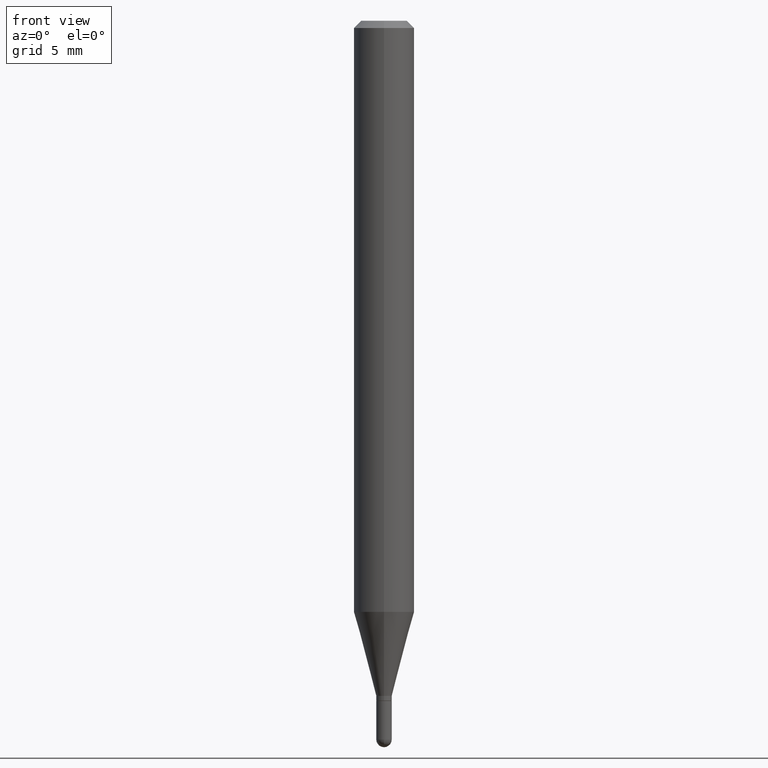
[diagram: clean part render]
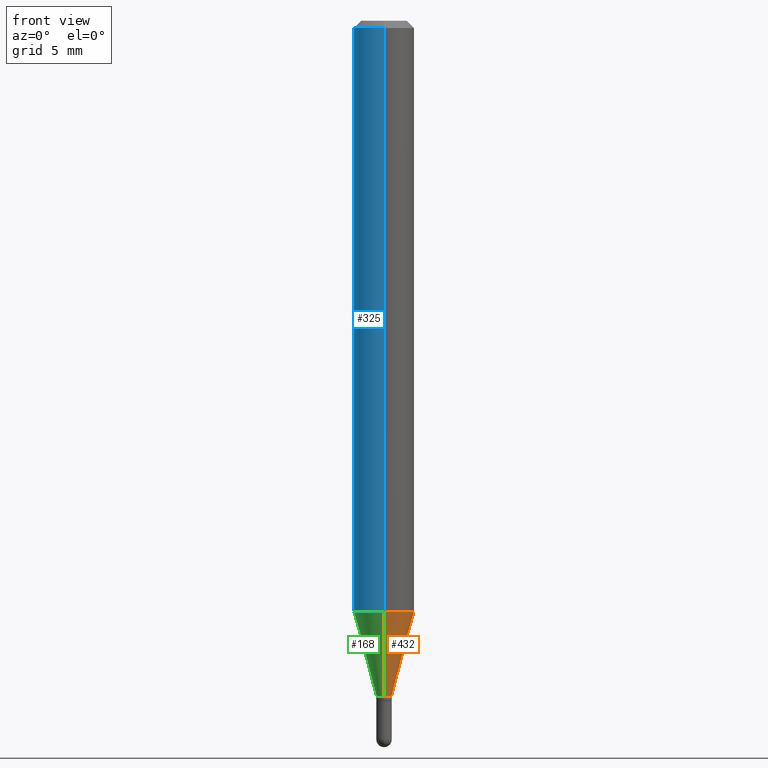
[diagram: same view with three faces highlighted in distinct colors, each labeled with its STEP entity id]
A machine part, front view with three faces highlighted in distinct colors.
Their STEP definitions:

[orange] entity #432 — the highlighted conical surface has half-angle 15 deg.
#3 = CARTESIAN_POINT ( 'NONE',  ( 2.788880237858710265E-16, 0.01599999999999505637, -1.393999999999999906 ) ) ;
#7 = CARTESIAN_POINT ( 'NONE',  ( 3.408965558848193450E-29, -4.867150701755997361E-15, -1.393999999999999906 ) ) ;
#35 = DIRECTION ( 'NONE',  ( -2.445455924568288198E-29, 3.491499786051648296E-15, 1.000000000000000000 ) ) ;
#36 = ORIENTED_EDGE ( 'NONE', *, *, #355, .F. ) ;
#49 = LINE ( 'NONE', #231, #346 ) ;
#52 = VECTOR ( 'NONE', #203, 39.37007874015748143 ) ;
#74 = DIRECTION ( 'NONE',  ( -2.445455924568288198E-29, 3.491499786051648296E-15, 1.000000000000000000 ) ) ;
#75 = CARTESIAN_POINT ( 'NONE',  ( -4.364351673553618406E-16, -0.06250000000000426048, -1.220459637448047419 ) ) ;
#107 = CARTESIAN_POINT ( 'NONE',  ( 4.440892098500920998E-16, 0.06249999999999571176, -1.220459637448047863 ) ) ;
#130 = CIRCLE ( 'NONE', #216, 0.01599999999999992401 ) ;
#151 = VERTEX_POINT ( 'NONE', #107 ) ;
#179 = ORIENTED_EDGE ( 'NONE', *, *, #398, .T. ) ;
#203 = DIRECTION ( 'NONE',  ( -1.807323732225330928E-15, -0.2588190451025182970, 0.9659258262890689783 ) ) ;
#206 = DIRECTION ( 'NONE',  ( 1.839019923739601104E-15, 0.2588190451025250693, 0.9659258262890670910 ) ) ;
#216 = AXIS2_PLACEMENT_3D ( 'NONE', #443, #74, #239 ) ;
#224 = VERTEX_POINT ( 'NONE', #3 ) ;
#231 = CARTESIAN_POINT ( 'NONE',  ( 1.136868377216495587E-16, 0.01599999999999505637, -1.393999999999999906 ) ) ;
#237 = FACE_OUTER_BOUND ( 'NONE', #248, .T. ) ;
#239 = DIRECTION ( 'NONE',  ( -6.982962677686265922E-15, -1.000000000000000000, 0.000000000000000000 ) ) ;
#248 = EDGE_LOOP ( 'NONE', ( #348, #179, #374, #36 ) ) ;
#256 = VERTEX_POINT ( 'NONE', #75 ) ;
#264 = CARTESIAN_POINT ( 'NONE',  ( 2.984580251093793523E-29, -4.261234563034530166E-15, -1.220459637448047641 ) ) ;
#276 = CARTESIAN_POINT ( 'NONE',  ( -1.117274028429456354E-16, -0.01600000000000479164, -1.393999999999999906 ) ) ;
#278 = LINE ( 'NONE', #276, #52 ) ;
#305 = EDGE_CURVE ( 'NONE', #256, #151, #506, .T. ) ;
#314 = AXIS2_PLACEMENT_3D ( 'NONE', #264, #35, #470 ) ;
#346 = VECTOR ( 'NONE', #206, 39.37007874015748143 ) ;
#348 = ORIENTED_EDGE ( 'NONE', *, *, #388, .T. ) ;
#355 = EDGE_CURVE ( 'NONE', #462, #256, #278, .T. ) ;
#374 = ORIENTED_EDGE ( 'NONE', *, *, #305, .F. ) ;
#388 = EDGE_CURVE ( 'NONE', #462, #224, #130, .T. ) ;
#398 = EDGE_CURVE ( 'NONE', #224, #151, #49, .T. ) ;
#399 = DIRECTION ( 'NONE',  ( -6.982962677686265922E-15, -1.000000000000000000, 0.000000000000000000 ) ) ;
#414 = AXIS2_PLACEMENT_3D ( 'NONE', #7, #479, #399 ) ;
#432 = ADVANCED_FACE ( 'NONE', ( #237 ), #435, .T. ) ;
#435 = CONICAL_SURFACE ( 'NONE', #414, 0.01599999999999992401, 0.2617993877991502960 ) ;
#443 = CARTESIAN_POINT ( 'NONE',  ( 3.408965558848193450E-29, -4.867150701755997361E-15, -1.393999999999999906 ) ) ;
#462 = VERTEX_POINT ( 'NONE', #485 ) ;
#470 = DIRECTION ( 'NONE',  ( -6.982962677686265922E-15, -1.000000000000000000, 4.370956789862821150E-15 ) ) ;
#479 = DIRECTION ( 'NONE',  ( -2.445455924568288198E-29, 3.491499786051648296E-15, 1.000000000000000000 ) ) ;
#485 = CARTESIAN_POINT ( 'NONE',  ( -1.117274028429456354E-16, -0.01600000000000479164, -1.393999999999999906 ) ) ;
#506 = CIRCLE ( 'NONE', #314, 0.06250000000000000000 ) ;

[blue] entity #325 — the highlighted cylindrical surface (edge-blend (fillet) strip) has radius 1.5875 mm, axis along (-0, 0, 1).
#15 = EDGE_CURVE ( 'NONE', #151, #256, #176, .T. ) ;
#18 = VERTEX_POINT ( 'NONE', #385 ) ;
#38 = AXIS2_PLACEMENT_3D ( 'NONE', #425, #437, #72 ) ;
#68 = CYLINDRICAL_SURFACE ( 'NONE', #137, 0.06250000000000000000 ) ;
#72 = DIRECTION ( 'NONE',  ( -6.982962677686265922E-15, -1.000000000000000000, 4.370956789862821150E-15 ) ) ;
#75 = CARTESIAN_POINT ( 'NONE',  ( -4.364351673553618406E-16, -0.06250000000000426048, -1.220459637448047419 ) ) ;
#86 = EDGE_CURVE ( 'NONE', #187, #18, #422, .T. ) ;
#102 = ORIENTED_EDGE ( 'NONE', *, *, #344, .F. ) ;
#103 = DIRECTION ( 'NONE',  ( -6.982962677686265922E-15, -1.000000000000000000, 3.483106191921935554E-15 ) ) ;
#106 = ORIENTED_EDGE ( 'NONE', *, *, #86, .F. ) ;
#107 = CARTESIAN_POINT ( 'NONE',  ( 4.440892098500920998E-16, 0.06249999999999571176, -1.220459637448047863 ) ) ;
#121 = LINE ( 'NONE', #510, #452 ) ;
#137 = AXIS2_PLACEMENT_3D ( 'NONE', #446, #405, #489 ) ;
#151 = VERTEX_POINT ( 'NONE', #107 ) ;
#155 = DIRECTION ( 'NONE',  ( -2.445455924568288198E-29, 3.491499786051648296E-15, 1.000000000000000000 ) ) ;
#159 = VECTOR ( 'NONE', #447, 39.37007874015748143 ) ;
#164 = CARTESIAN_POINT ( 'NONE',  ( 4.440892098500924943E-16, 0.06249999999999993755, -0.01499999999999997863 ) ) ;
#176 = CIRCLE ( 'NONE', #38, 0.06250000000000000000 ) ;
#187 = VERTEX_POINT ( 'NONE', #164 ) ;
#192 = EDGE_LOOP ( 'NONE', ( #102, #261, #328, #106 ) ) ;
#238 = LINE ( 'NONE', #317, #159 ) ;
#241 = EDGE_CURVE ( 'NONE', #256, #18, #238, .T. ) ;
#245 = AXIS2_PLACEMENT_3D ( 'NONE', #467, #155, #103 ) ;
#256 = VERTEX_POINT ( 'NONE', #75 ) ;
#261 = ORIENTED_EDGE ( 'NONE', *, *, #15, .T. ) ;
#317 = CARTESIAN_POINT ( 'NONE',  ( -4.364351673553916201E-16, -0.06250000000000000000, 2.182187366282280185E-16 ) ) ;
#321 = DIRECTION ( 'NONE',  ( -2.445455924568288198E-29, 3.491499786051648691E-15, 1.000000000000000000 ) ) ;
#325 = ADVANCED_FACE ( 'NONE', ( #476 ), #68, .T. ) ;
#328 = ORIENTED_EDGE ( 'NONE', *, *, #241, .T. ) ;
#344 = EDGE_CURVE ( 'NONE', #151, #187, #121, .T. ) ;
#385 = CARTESIAN_POINT ( 'NONE',  ( -4.364351673553912750E-16, -0.06250000000000005551, -0.01499999999999954321 ) ) ;
#405 = DIRECTION ( 'NONE',  ( -2.445455924568288198E-29, 3.491499786051648296E-15, 1.000000000000000000 ) ) ;
#422 = CIRCLE ( 'NONE', #245, 0.06250000000000000000 ) ;
#425 = CARTESIAN_POINT ( 'NONE',  ( 2.984580251093793523E-29, -4.261234563034530166E-15, -1.220459637448047641 ) ) ;
#437 = DIRECTION ( 'NONE',  ( -2.445455924568288198E-29, 3.491499786051648296E-15, 1.000000000000000000 ) ) ;
#446 = CARTESIAN_POINT ( 'NONE',  ( 0.000000000000000000, 0.000000000000000000, 0.000000000000000000 ) ) ;
#447 = DIRECTION ( 'NONE',  ( -2.445455924568288198E-29, 3.491499786051648691E-15, 1.000000000000000000 ) ) ;
#452 = VECTOR ( 'NONE', #321, 39.37007874015748143 ) ;
#467 = CARTESIAN_POINT ( 'NONE',  ( 3.668183886852373582E-31, -5.237249679077389564E-17, -0.01499999999999976179 ) ) ;
#476 = FACE_OUTER_BOUND ( 'NONE', #192, .T. ) ;
#489 = DIRECTION ( 'NONE',  ( -6.982962677686265922E-15, -1.000000000000000000, 3.491499786051648296E-15 ) ) ;
#510 = CARTESIAN_POINT ( 'NONE',  ( 4.440892098500625669E-16, 0.06250000000000000000, -2.182187366282280185E-16 ) ) ;

[green] entity #168 — the highlighted conical surface has half-angle 15 deg.
#3 = CARTESIAN_POINT ( 'NONE',  ( 2.788880237858710265E-16, 0.01599999999999505637, -1.393999999999999906 ) ) ;
#15 = EDGE_CURVE ( 'NONE', #151, #256, #176, .T. ) ;
#30 = DIRECTION ( 'NONE',  ( -6.982962677686265922E-15, -1.000000000000000000, 0.000000000000000000 ) ) ;
#38 = AXIS2_PLACEMENT_3D ( 'NONE', #425, #437, #72 ) ;
#49 = LINE ( 'NONE', #231, #346 ) ;
#52 = VECTOR ( 'NONE', #203, 39.37007874015748143 ) ;
#70 = AXIS2_PLACEMENT_3D ( 'NONE', #335, #421, #30 ) ;
#72 = DIRECTION ( 'NONE',  ( -6.982962677686265922E-15, -1.000000000000000000, 4.370956789862821150E-15 ) ) ;
#75 = CARTESIAN_POINT ( 'NONE',  ( -4.364351673553618406E-16, -0.06250000000000426048, -1.220459637448047419 ) ) ;
#90 = ORIENTED_EDGE ( 'NONE', *, *, #398, .F. ) ;
#94 = ORIENTED_EDGE ( 'NONE', *, *, #135, .T. ) ;
#107 = CARTESIAN_POINT ( 'NONE',  ( 4.440892098500920998E-16, 0.06249999999999571176, -1.220459637448047863 ) ) ;
#135 = EDGE_CURVE ( 'NONE', #224, #462, #392, .T. ) ;
#151 = VERTEX_POINT ( 'NONE', #107 ) ;
#152 = FACE_OUTER_BOUND ( 'NONE', #215, .T. ) ;
#168 = ADVANCED_FACE ( 'NONE', ( #152 ), #364, .T. ) ;
#176 = CIRCLE ( 'NONE', #38, 0.06250000000000000000 ) ;
#203 = DIRECTION ( 'NONE',  ( -1.807323732225330928E-15, -0.2588190451025182970, 0.9659258262890689783 ) ) ;
#206 = DIRECTION ( 'NONE',  ( 1.839019923739601104E-15, 0.2588190451025250693, 0.9659258262890670910 ) ) ;
#215 = EDGE_LOOP ( 'NONE', ( #90, #94, #417, #308 ) ) ;
#224 = VERTEX_POINT ( 'NONE', #3 ) ;
#231 = CARTESIAN_POINT ( 'NONE',  ( 1.136868377216495587E-16, 0.01599999999999505637, -1.393999999999999906 ) ) ;
#256 = VERTEX_POINT ( 'NONE', #75 ) ;
#269 = CARTESIAN_POINT ( 'NONE',  ( 3.408965558848193450E-29, -4.867150701755997361E-15, -1.393999999999999906 ) ) ;
#276 = CARTESIAN_POINT ( 'NONE',  ( -1.117274028429456354E-16, -0.01600000000000479164, -1.393999999999999906 ) ) ;
#278 = LINE ( 'NONE', #276, #52 ) ;
#308 = ORIENTED_EDGE ( 'NONE', *, *, #15, .F. ) ;
#309 = DIRECTION ( 'NONE',  ( -6.982962677686265922E-15, -1.000000000000000000, 0.000000000000000000 ) ) ;
#335 = CARTESIAN_POINT ( 'NONE',  ( 3.408965558848193450E-29, -4.867150701755997361E-15, -1.393999999999999906 ) ) ;
#346 = VECTOR ( 'NONE', #206, 39.37007874015748143 ) ;
#355 = EDGE_CURVE ( 'NONE', #462, #256, #278, .T. ) ;
#364 = CONICAL_SURFACE ( 'NONE', #378, 0.01599999999999992401, 0.2617993877991502960 ) ;
#378 = AXIS2_PLACEMENT_3D ( 'NONE', #269, #472, #309 ) ;
#392 = CIRCLE ( 'NONE', #70, 0.01599999999999992401 ) ;
#398 = EDGE_CURVE ( 'NONE', #224, #151, #49, .T. ) ;
#417 = ORIENTED_EDGE ( 'NONE', *, *, #355, .T. ) ;
#421 = DIRECTION ( 'NONE',  ( -2.445455924568288198E-29, 3.491499786051648296E-15, 1.000000000000000000 ) ) ;
#425 = CARTESIAN_POINT ( 'NONE',  ( 2.984580251093793523E-29, -4.261234563034530166E-15, -1.220459637448047641 ) ) ;
#437 = DIRECTION ( 'NONE',  ( -2.445455924568288198E-29, 3.491499786051648296E-15, 1.000000000000000000 ) ) ;
#462 = VERTEX_POINT ( 'NONE', #485 ) ;
#472 = DIRECTION ( 'NONE',  ( -2.445455924568288198E-29, 3.491499786051648296E-15, 1.000000000000000000 ) ) ;
#485 = CARTESIAN_POINT ( 'NONE',  ( -1.117274028429456354E-16, -0.01600000000000479164, -1.393999999999999906 ) ) ;